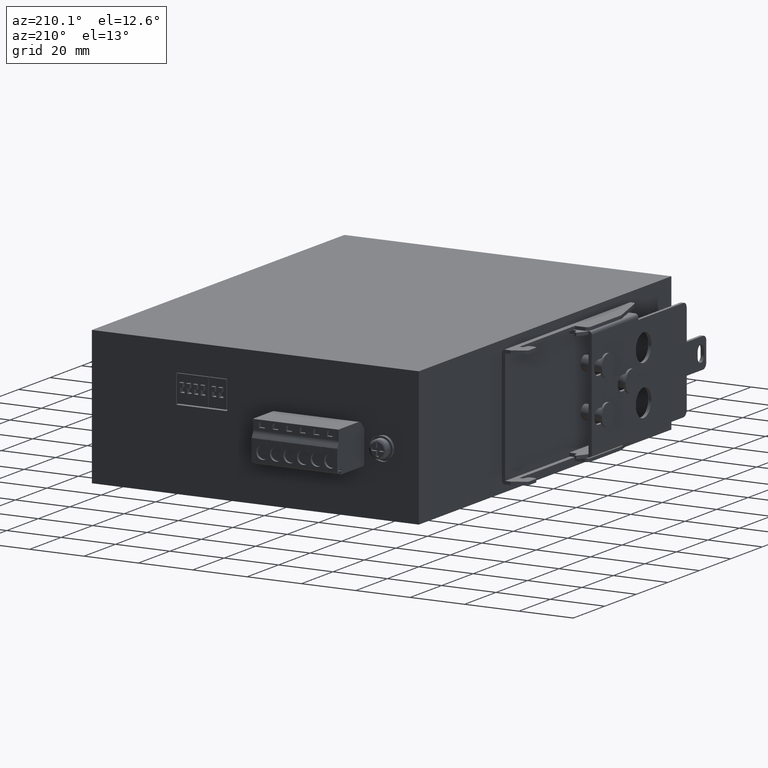
[diagram: clean part render]
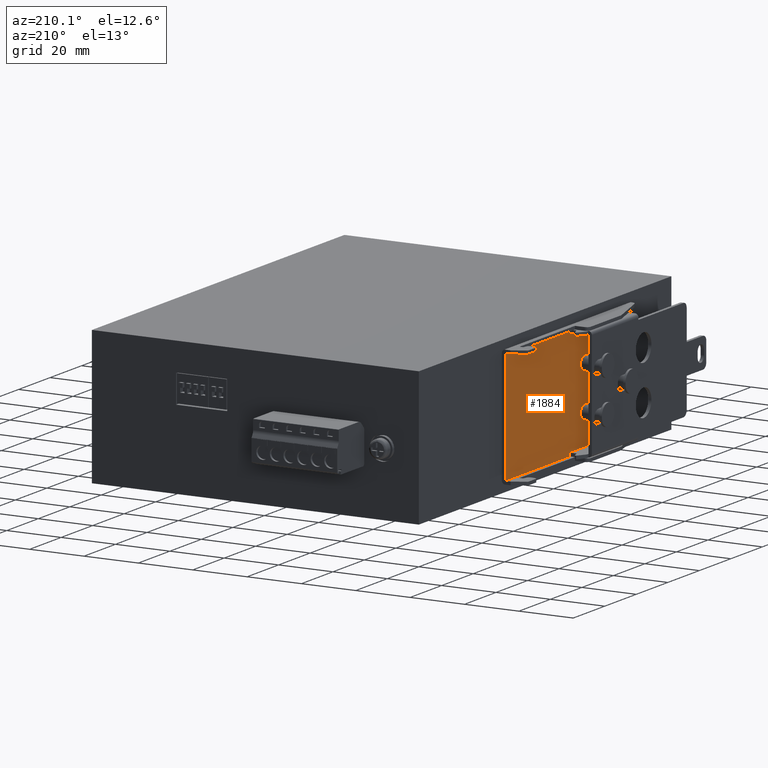
[diagram: same view with one face highlighted and labeled with its STEP entity id]
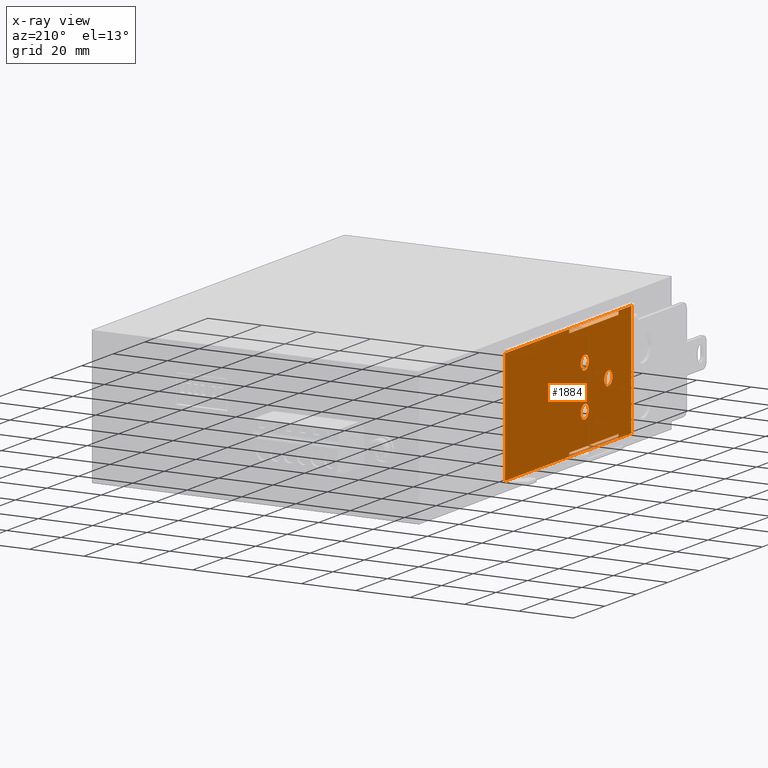
[diagram: x-ray of the same camera — body ghosted, the highlighted face saturated]
A machine part, auxiliary view. The second image highlights one B-rep face of the part: STEP entity #1884.
The next image is the same camera in x-ray: the body ghosted, the highlighted face saturated — about 0% of this face is hidden behind the body in this view.
In plain terms, the highlighted planar face has unit normal (1, 0, -0).
Its self-contained STEP definition (entity closure, byte-faithful):
#61 = VERTEX_POINT ( 'NONE', #15053 ) ;
#132 = FACE_BOUND ( 'NONE', #16381, .T. ) ;
#140 = CARTESIAN_POINT ( 'NONE',  ( 0.07086614173228347746, 4.236220472440945350, 0.1653543307086614567 ) ) ;
#232 = DIRECTION ( 'NONE',  ( -5.212510444641850137E-18, 0.000000000000000000, -1.000000000000000000 ) ) ;
#333 = DIRECTION ( 'NONE',  ( -0.000000000000000000, 0.000000000000000000, -1.000000000000000000 ) ) ;
#470 = VECTOR ( 'NONE', #8099, 39.37007874015748143 ) ;
#542 = CARTESIAN_POINT ( 'NONE',  ( 0.07086614173228347746, 2.248031496062992574, 1.299212598425196985 ) ) ;
#578 = EDGE_LOOP ( 'NONE', ( #12777, #10483, #9667, #14981 ) ) ;
#770 = CIRCLE ( 'NONE', #2999, 0.1023622047244095168 ) ;
#908 = EDGE_CURVE ( 'NONE', #2303, #14641, #770, .T. ) ;
#926 = VERTEX_POINT ( 'NONE', #9888 ) ;
#937 = DIRECTION ( 'NONE',  ( -0.000000000000000000, 0.000000000000000000, -1.000000000000000000 ) ) ;
#1351 = FACE_BOUND ( 'NONE', #11353, .T. ) ;
#1365 = EDGE_LOOP ( 'NONE', ( #7961, #3564 ) ) ;
#1434 = FACE_OUTER_BOUND ( 'NONE', #9105, .T. ) ;
#1441 = LINE ( 'NONE', #140, #470 ) ;
#1470 = DIRECTION ( 'NONE',  ( -0.000000000000000000, 0.000000000000000000, -1.000000000000000000 ) ) ;
#1473 = DIRECTION ( 'NONE',  ( -1.000000000000000000, -0.000000000000000000, -0.000000000000000000 ) ) ;
#1484 = DIRECTION ( 'NONE',  ( -1.000000000000000000, -0.000000000000000000, -0.000000000000000000 ) ) ;
#1514 = CARTESIAN_POINT ( 'NONE',  ( 0.07086614173228347746, 4.236220472440945350, 0.1653543307086614567 ) ) ;
#1589 = EDGE_CURVE ( 'NONE', #9516, #8048, #2688, .T. ) ;
#1651 = CARTESIAN_POINT ( 'NONE',  ( 0.07086614173228347746, 1.409448818897637734, 1.750000000000000222 ) ) ;
#1760 = EDGE_CURVE ( 'NONE', #7520, #14826, #15175, .T. ) ;
#1884 = ADVANCED_FACE ( 'NONE', ( #13243, #132, #1434, #12203, #1351, #5392 ), #13594, .F. ) ;
#2253 = CARTESIAN_POINT ( 'NONE',  ( 0.07086614173228347746, 2.633858267716535639, 0.1712598425196850405 ) ) ;
#2258 = CARTESIAN_POINT ( 'NONE',  ( 0.07086614173228347746, 2.633858267716535639, 0.2185039370078740995 ) ) ;
#2303 = VERTEX_POINT ( 'NONE', #8052 ) ;
#2410 = LINE ( 'NONE', #10640, #8013 ) ;
#2483 = VERTEX_POINT ( 'NONE', #2258 ) ;
#2688 = LINE ( 'NONE', #13363, #14236 ) ;
#2841 = DIRECTION ( 'NONE',  ( 0.000000000000000000, 0.000000000000000000, -1.000000000000000000 ) ) ;
#2996 = AXIS2_PLACEMENT_3D ( 'NONE', #10825, #9517, #14842 ) ;
#2999 = AXIS2_PLACEMENT_3D ( 'NONE', #542, #12519, #11281 ) ;
#3104 = CARTESIAN_POINT ( 'NONE',  ( 0.07086614173228347746, 1.086614173228346525, 1.803149606299212726 ) ) ;
#3248 = CARTESIAN_POINT ( 'NONE',  ( 0.07086614173228347746, 1.409448818897637734, 1.797244094488188892 ) ) ;
#3325 = VERTEX_POINT ( 'NONE', #7634 ) ;
#3516 = ORIENTED_EDGE ( 'NONE', *, *, #5969, .F. ) ;
#3564 = ORIENTED_EDGE ( 'NONE', *, *, #1760, .F. ) ;
#3568 = LINE ( 'NONE', #8908, #12804 ) ;
#3761 = CARTESIAN_POINT ( 'NONE',  ( 0.07086614173228347746, 1.657480314960630086, 0.8818897637795275468 ) ) ;
#3838 = EDGE_LOOP ( 'NONE', ( #10162, #4594 ) ) ;
#3912 = DIRECTION ( 'NONE',  ( 0.000000000000000000, 1.000000000000000000, 0.000000000000000000 ) ) ;
#3937 = LINE ( 'NONE', #9448, #12434 ) ;
#3953 = CARTESIAN_POINT ( 'NONE',  ( 0.07086614173228347746, 2.248031496062992574, 1.299212598425196985 ) ) ;
#4110 = LINE ( 'NONE', #1651, #16614 ) ;
#4154 = CIRCLE ( 'NONE', #16444, 0.1023622047244095168 ) ;
#4300 = AXIS2_PLACEMENT_3D ( 'NONE', #11510, #15772, #13165 ) ;
#4594 = ORIENTED_EDGE ( 'NONE', *, *, #14371, .F. ) ;
#4647 = VECTOR ( 'NONE', #3912, 39.37007874015748143 ) ;
#4692 = CARTESIAN_POINT ( 'NONE',  ( 0.07086614173228347746, 1.409448818897637734, 0.2185039370078740717 ) ) ;
#4920 = VERTEX_POINT ( 'NONE', #3761 ) ;
#5129 = EDGE_CURVE ( 'NONE', #14641, #2303, #4154, .T. ) ;
#5254 = CARTESIAN_POINT ( 'NONE',  ( 0.07086614173228347746, 1.086614173228346525, 0.1653543307086615122 ) ) ;
#5293 = VECTOR ( 'NONE', #6256, 39.37007874015748143 ) ;
#5308 = DIRECTION ( 'NONE',  ( 1.000000000000000000, 0.000000000000000000, -5.212510444641850137E-18 ) ) ;
#5392 = FACE_BOUND ( 'NONE', #3838, .T. ) ;
#5461 = VERTEX_POINT ( 'NONE', #5254 ) ;
#5707 = AXIS2_PLACEMENT_3D ( 'NONE', #1514, #5308, #232 ) ;
#5734 = VECTOR ( 'NONE', #12486, 39.37007874015748143 ) ;
#5797 = CIRCLE ( 'NONE', #12210, 0.1023622047244094474 ) ;
#5922 = CARTESIAN_POINT ( 'NONE',  ( 0.07086614173228347746, 2.248031496062992574, 0.5669291338582678197 ) ) ;
#5969 = EDGE_CURVE ( 'NONE', #13854, #2483, #10558, .T. ) ;
#6256 = DIRECTION ( 'NONE',  ( -0.000000000000000000, -1.000000000000000000, -0.000000000000000000 ) ) ;
#6395 = AXIS2_PLACEMENT_3D ( 'NONE', #8212, #1473, #13539 ) ;
#6596 = EDGE_CURVE ( 'NONE', #3325, #61, #17122, .T. ) ;
#6598 = CARTESIAN_POINT ( 'NONE',  ( 0.07086614173228347746, 4.236220472440945350, 0.1653543307086615122 ) ) ;
#6716 = EDGE_CURVE ( 'NONE', #926, #16757, #3937, .T. ) ;
#6757 = EDGE_CURVE ( 'NONE', #13854, #8438, #4110, .T. ) ;
#6891 = CARTESIAN_POINT ( 'NONE',  ( 0.07086614173228347746, 2.633858267716535639, 1.750000000000000222 ) ) ;
#7158 = LINE ( 'NONE', #11086, #5734 ) ;
#7504 = VERTEX_POINT ( 'NONE', #13757 ) ;
#7520 = VERTEX_POINT ( 'NONE', #12289 ) ;
#7634 = CARTESIAN_POINT ( 'NONE',  ( 0.07086614173228347746, 2.633858267716535639, 1.750000000000000444 ) ) ;
#7961 = ORIENTED_EDGE ( 'NONE', *, *, #10138, .F. ) ;
#8013 = VECTOR ( 'NONE', #8739, 39.37007874015748143 ) ;
#8048 = VERTEX_POINT ( 'NONE', #16812 ) ;
#8052 = CARTESIAN_POINT ( 'NONE',  ( 0.07086614173228347746, 2.248031496062992574, 1.196850393700787496 ) ) ;
#8099 = DIRECTION ( 'NONE',  ( 0.000000000000000000, 1.000000000000000000, 0.000000000000000000 ) ) ;
#8212 = CARTESIAN_POINT ( 'NONE',  ( 0.07086614173228347746, 1.657480314960630086, 0.9842519685039370358 ) ) ;
#8369 = ORIENTED_EDGE ( 'NONE', *, *, #15615, .F. ) ;
#8438 = VERTEX_POINT ( 'NONE', #17203 ) ;
#8531 = LINE ( 'NONE', #6891, #9700 ) ;
#8575 = EDGE_CURVE ( 'NONE', #14538, #2483, #7158, .T. ) ;
#8739 = DIRECTION ( 'NONE',  ( 0.000000000000000000, -0.000000000000000000, 1.000000000000000000 ) ) ;
#8742 = CARTESIAN_POINT ( 'NONE',  ( 0.07086614173228347746, 4.236220472440945350, 1.803149606299212726 ) ) ;
#8908 = CARTESIAN_POINT ( 'NONE',  ( 0.07086614173228347746, 1.409448818897637734, 1.750000000000000222 ) ) ;
#8969 = CARTESIAN_POINT ( 'NONE',  ( 0.07086614173228347746, 4.236220472440945350, 0.1712598425196850405 ) ) ;
#9044 = LINE ( 'NONE', #8969, #5293 ) ;
#9105 = EDGE_LOOP ( 'NONE', ( #16802, #8369, #14383, #14813 ) ) ;
#9211 = ORIENTED_EDGE ( 'NONE', *, *, #8575, .T. ) ;
#9448 = CARTESIAN_POINT ( 'NONE',  ( 0.07086614173228347746, 4.236220472440945350, 1.803149606299212726 ) ) ;
#9467 = CIRCLE ( 'NONE', #6395, 0.1023622047244095168 ) ;
#9516 = VERTEX_POINT ( 'NONE', #3248 ) ;
#9517 = DIRECTION ( 'NONE',  ( -1.000000000000000000, -0.000000000000000000, -0.000000000000000000 ) ) ;
#9640 = VECTOR ( 'NONE', #10321, 39.37007874015748143 ) ;
#9667 = ORIENTED_EDGE ( 'NONE', *, *, #14602, .T. ) ;
#9700 = VECTOR ( 'NONE', #333, 39.37007874015748143 ) ;
#9760 = CARTESIAN_POINT ( 'NONE',  ( 0.07086614173228347746, 2.248031496062992574, 0.6692913385826771977 ) ) ;
#9888 = CARTESIAN_POINT ( 'NONE',  ( 0.07086614173228347746, 4.236220472440945350, 1.803149606299212726 ) ) ;
#10030 = EDGE_CURVE ( 'NONE', #5461, #16757, #2410, .T. ) ;
#10065 = LINE ( 'NONE', #8742, #13260 ) ;
#10138 = EDGE_CURVE ( 'NONE', #14826, #7520, #5797, .T. ) ;
#10156 = EDGE_CURVE ( 'NONE', #5461, #10505, #1441, .T. ) ;
#10162 = ORIENTED_EDGE ( 'NONE', *, *, #13656, .F. ) ;
#10321 = DIRECTION ( 'NONE',  ( -0.000000000000000000, -1.000000000000000000, -0.000000000000000000 ) ) ;
#10441 = ORIENTED_EDGE ( 'NONE', *, *, #6757, .T. ) ;
#10483 = ORIENTED_EDGE ( 'NONE', *, *, #1589, .F. ) ;
#10505 = VERTEX_POINT ( 'NONE', #6598 ) ;
#10558 = LINE ( 'NONE', #15886, #4647 ) ;
#10640 = CARTESIAN_POINT ( 'NONE',  ( 0.07086614173228347746, 1.086614173228346525, 1.803149606299212726 ) ) ;
#10825 = CARTESIAN_POINT ( 'NONE',  ( 0.07086614173228347746, 1.657480314960630086, 0.9842519685039370358 ) ) ;
#11086 = CARTESIAN_POINT ( 'NONE',  ( 0.07086614173228347746, 2.633858267716535639, 0.2185039370078740439 ) ) ;
#11281 = DIRECTION ( 'NONE',  ( 0.000000000000000000, 0.000000000000000000, -1.000000000000000000 ) ) ;
#11353 = EDGE_LOOP ( 'NONE', ( #14488, #12743 ) ) ;
#11510 = CARTESIAN_POINT ( 'NONE',  ( 0.07086614173228347746, 2.248031496062992574, 0.6692913385826771977 ) ) ;
#11713 = CARTESIAN_POINT ( 'NONE',  ( 0.07086614173228347746, 4.236220472440945350, 1.750000000000000222 ) ) ;
#12203 = FACE_BOUND ( 'NONE', #1365, .T. ) ;
#12210 = AXIS2_PLACEMENT_3D ( 'NONE', #9760, #15003, #2841 ) ;
#12219 = CIRCLE ( 'NONE', #2996, 0.1023622047244095168 ) ;
#12289 = CARTESIAN_POINT ( 'NONE',  ( 0.07086614173228347746, 2.248031496062992574, 0.7716535433070867978 ) ) ;
#12434 = VECTOR ( 'NONE', #14780, 39.37007874015748143 ) ;
#12486 = DIRECTION ( 'NONE',  ( -0.000000000000000000, 0.000000000000000000, 1.000000000000000000 ) ) ;
#12519 = DIRECTION ( 'NONE',  ( -1.000000000000000000, -0.000000000000000000, -0.000000000000000000 ) ) ;
#12743 = ORIENTED_EDGE ( 'NONE', *, *, #5129, .F. ) ;
#12768 = ORIENTED_EDGE ( 'NONE', *, *, #14890, .F. ) ;
#12777 = ORIENTED_EDGE ( 'NONE', *, *, #13748, .F. ) ;
#12804 = VECTOR ( 'NONE', #937, 39.37007874015748143 ) ;
#13165 = DIRECTION ( 'NONE',  ( 0.000000000000000000, 0.000000000000000000, -1.000000000000000000 ) ) ;
#13243 = FACE_BOUND ( 'NONE', #578, .T. ) ;
#13260 = VECTOR ( 'NONE', #14065, 39.37007874015748143 ) ;
#13363 = CARTESIAN_POINT ( 'NONE',  ( 0.07086614173228347746, 4.236220472440945350, 1.797244094488188892 ) ) ;
#13518 = CARTESIAN_POINT ( 'NONE',  ( 0.07086614173228347746, 2.248031496062992574, 1.401574803149606252 ) ) ;
#13539 = DIRECTION ( 'NONE',  ( 0.000000000000000000, 0.000000000000000000, -1.000000000000000000 ) ) ;
#13594 = PLANE ( 'NONE',  #5707 ) ;
#13656 = EDGE_CURVE ( 'NONE', #4920, #7504, #12219, .T. ) ;
#13748 = EDGE_CURVE ( 'NONE', #8048, #3325, #8531, .T. ) ;
#13757 = CARTESIAN_POINT ( 'NONE',  ( 0.07086614173228347746, 1.657480314960630086, 1.086614173228346525 ) ) ;
#13854 = VERTEX_POINT ( 'NONE', #4692 ) ;
#14065 = DIRECTION ( 'NONE',  ( 0.000000000000000000, -0.000000000000000000, 1.000000000000000000 ) ) ;
#14236 = VECTOR ( 'NONE', #16065, 39.37007874015748143 ) ;
#14371 = EDGE_CURVE ( 'NONE', #7504, #4920, #9467, .T. ) ;
#14383 = ORIENTED_EDGE ( 'NONE', *, *, #10156, .F. ) ;
#14488 = ORIENTED_EDGE ( 'NONE', *, *, #908, .F. ) ;
#14538 = VERTEX_POINT ( 'NONE', #2253 ) ;
#14602 = EDGE_CURVE ( 'NONE', #9516, #61, #3568, .T. ) ;
#14641 = VERTEX_POINT ( 'NONE', #13518 ) ;
#14780 = DIRECTION ( 'NONE',  ( -0.000000000000000000, -1.000000000000000000, -0.000000000000000000 ) ) ;
#14813 = ORIENTED_EDGE ( 'NONE', *, *, #10030, .T. ) ;
#14826 = VERTEX_POINT ( 'NONE', #5922 ) ;
#14842 = DIRECTION ( 'NONE',  ( 0.000000000000000000, 0.000000000000000000, -1.000000000000000000 ) ) ;
#14890 = EDGE_CURVE ( 'NONE', #14538, #8438, #9044, .T. ) ;
#14981 = ORIENTED_EDGE ( 'NONE', *, *, #6596, .F. ) ;
#15003 = DIRECTION ( 'NONE',  ( -1.000000000000000000, -0.000000000000000000, -0.000000000000000000 ) ) ;
#15053 = CARTESIAN_POINT ( 'NONE',  ( 0.07086614173228347746, 1.409448818897637734, 1.750000000000000222 ) ) ;
#15175 = CIRCLE ( 'NONE', #4300, 0.1023622047244094474 ) ;
#15615 = EDGE_CURVE ( 'NONE', #10505, #926, #10065, .T. ) ;
#15772 = DIRECTION ( 'NONE',  ( -1.000000000000000000, -0.000000000000000000, -0.000000000000000000 ) ) ;
#15886 = CARTESIAN_POINT ( 'NONE',  ( 0.07086614173228347746, 4.236220472440945350, 0.2185039370078740439 ) ) ;
#16065 = DIRECTION ( 'NONE',  ( 0.000000000000000000, 1.000000000000000000, 0.000000000000000000 ) ) ;
#16381 = EDGE_LOOP ( 'NONE', ( #3516, #10441, #12768, #9211 ) ) ;
#16444 = AXIS2_PLACEMENT_3D ( 'NONE', #3953, #1484, #17233 ) ;
#16614 = VECTOR ( 'NONE', #1470, 39.37007874015748143 ) ;
#16757 = VERTEX_POINT ( 'NONE', #3104 ) ;
#16802 = ORIENTED_EDGE ( 'NONE', *, *, #6716, .F. ) ;
#16812 = CARTESIAN_POINT ( 'NONE',  ( 0.07086614173228347746, 2.633858267716535639, 1.797244094488188892 ) ) ;
#17122 = LINE ( 'NONE', #11713, #9640 ) ;
#17203 = CARTESIAN_POINT ( 'NONE',  ( 0.07086614173228347746, 1.409448818897637734, 0.1712598425196850405 ) ) ;
#17233 = DIRECTION ( 'NONE',  ( 0.000000000000000000, 0.000000000000000000, -1.000000000000000000 ) ) ;